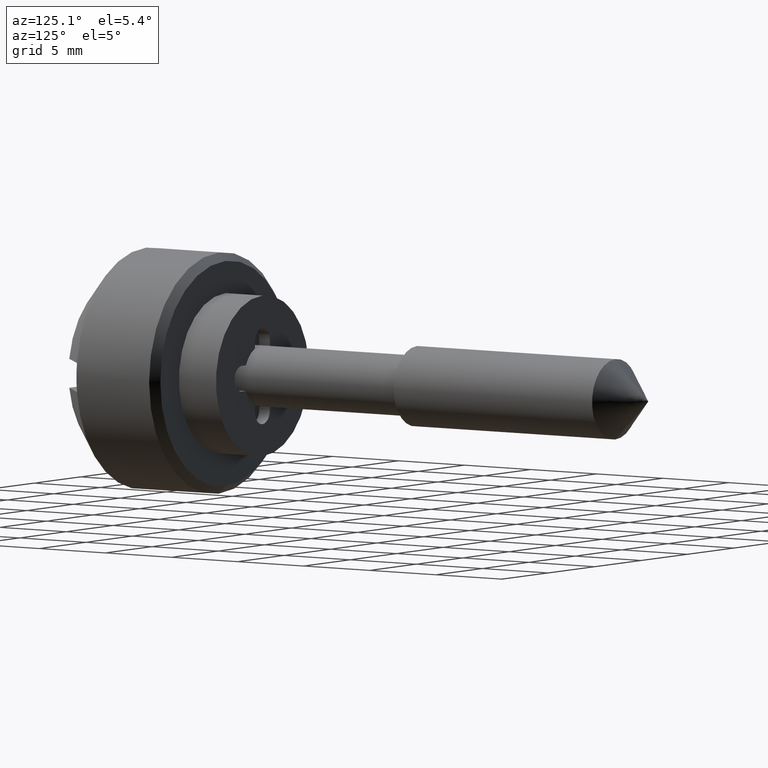
[diagram: clean part render]
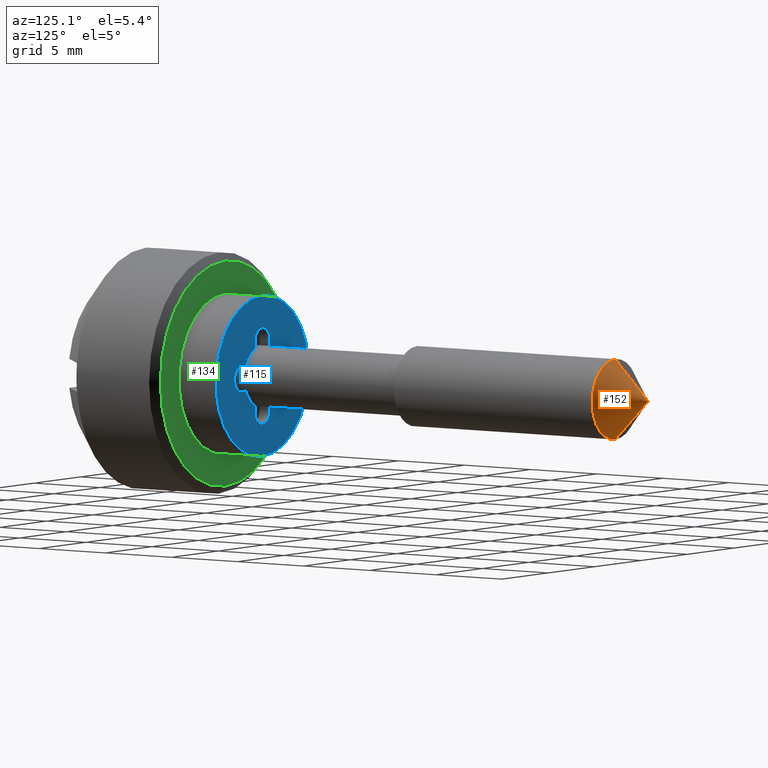
[diagram: same view with three faces highlighted in distinct colors, each labeled with its STEP entity id]
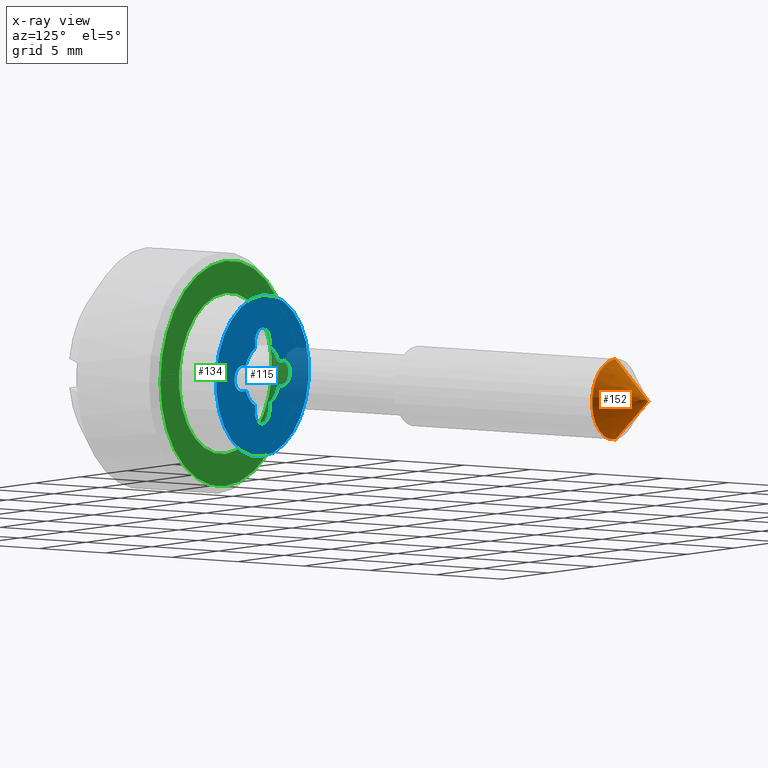
[diagram: x-ray of the same camera — body ghosted, the three highlighted faces saturated]
A machine part, auxiliary view with three faces highlighted in distinct colors.
The next image is the same camera in x-ray (body ghosted, the three faces saturated) — at least one of them is partly hidden behind the body in this view.
Their STEP definitions:

[orange] entity #152 — the highlighted face is a freeform B-spline surface patch.
#152=ADVANCED_FACE('',(#560),#559,.T.);
#559=( BOUNDED_SURFACE() B_SPLINE_SURFACE( 2,1,((#808,#809),(#810,#811),(#812,#813),(#814,#815),(#816,#817)), .UNSPECIFIED.,.F.,.F.,.F.) B_SPLINE_SURFACE_WITH_KNOTS((3,2,3),(2,2),(0.00000000000E+00,5.00000000000E-01,1.00000000000E+00),(0.00000000000E+00,1.00000000000E+00), .UNSPECIFIED. ) GEOMETRIC_REPRESENTATION_ITEM() RATIONAL_B_SPLINE_SURFACE(((1.00000000000E+00,1.00000000000E+00),(7.07106781187E-01,7.07106781187E-01),(1.00000000000E+00,1.00000000000E+00),(7.07106781187E-01,7.07106781187E-01),(1.00000000000E+00,1.00000000000E+00))) REPRESENTATION_ITEM('') SURFACE() );
#560=FACE_OUTER_BOUND('',#818,.T.);
#808=CARTESIAN_POINT('',(3.00000000000E+01,0.00000000000E+00,0.00000000000E+00));
#809=CARTESIAN_POINT('',(2.75000000000E+01,-6.12323399574E-16,-2.50000000000E+00));
#810=CARTESIAN_POINT('',(3.00000000000E+01,0.00000000000E+00,0.00000000000E+00));
#811=CARTESIAN_POINT('',(2.75000000000E+01,-2.50000000000E+00,-2.50000000000E+00));
#812=CARTESIAN_POINT('',(3.00000000000E+01,0.00000000000E+00,0.00000000000E+00));
#813=CARTESIAN_POINT('',(2.75000000000E+01,-2.50000000000E+00,4.59242549680E-16));
#814=CARTESIAN_POINT('',(3.00000000000E+01,0.00000000000E+00,0.00000000000E+00));
#815=CARTESIAN_POINT('',(2.75000000000E+01,-2.50000000000E+00,2.50000000000E+00));
#816=CARTESIAN_POINT('',(3.00000000000E+01,0.00000000000E+00,0.00000000000E+00));
#817=CARTESIAN_POINT('',(2.75000000000E+01,3.06161699787E-16,2.50000000000E+00));
#818=EDGE_LOOP('',(#1020,#1021,#1022));
#1020=ORIENTED_EDGE('',*,*,#1121,.F.);
#1021=ORIENTED_EDGE('',*,*,#1122,.F.);
#1022=ORIENTED_EDGE('',*,*,#1123,.T.);
#1121=EDGE_CURVE('',#1737,#1736,#1756,.T.);
#1122=EDGE_CURVE('',#1762,#1737,#1763,.T.);
#1123=EDGE_CURVE('',#1762,#1736,#1769,.T.);
#1736=VERTEX_POINT('',#2147);
#1737=VERTEX_POINT('',#2148);
#1756=CIRCLE('',#2160,2.50000000000E+00);
#1762=VERTEX_POINT('',#2161);
#1763=(BOUNDED_CURVE() B_SPLINE_CURVE(1,(#2162,#2163),.UNSPECIFIED.,.F.,.F.) B_SPLINE_CURVE_WITH_KNOTS((2,2),(0.00000000000E+00,1.00000000000E+00),.UNSPECIFIED.) CURVE() GEOMETRIC_REPRESENTATION_ITEM() RATIONAL_B_SPLINE_CURVE((1.00000000000E+00,1.00000000000E+00)) REPRESENTATION_ITEM('') );
#1769=(BOUNDED_CURVE() B_SPLINE_CURVE(1,(#2164,#2165),.UNSPECIFIED.,.F.,.F.) B_SPLINE_CURVE_WITH_KNOTS((2,2),(0.00000000000E+00,1.00000000000E+00),.UNSPECIFIED.) CURVE() GEOMETRIC_REPRESENTATION_ITEM() RATIONAL_B_SPLINE_CURVE((7.50000000000E-01,7.50000000000E-01)) REPRESENTATION_ITEM('') );
#2147=CARTESIAN_POINT('',(2.75000000000E+01,0.00000000000E+00,2.50000000000E+00));
#2148=CARTESIAN_POINT('',(2.75000000000E+01,1.48029736617E-16,-2.50000000000E+00));
#2157=CARTESIAN_POINT('',(2.75000000000E+01,0.00000000000E+00,0.00000000000E+00));
#2158=DIRECTION('',(-1.00000000000E+00,0.00000000000E+00,0.00000000000E+00));
#2159=DIRECTION('',(0.00000000000E+00,-1.22460635382E-16,1.00000000000E+00));
#2160=AXIS2_PLACEMENT_3D('',#2157,#2158,#2159);
#2161=CARTESIAN_POINT('',(3.00000000000E+01,0.00000000000E+00,6.73533494602E-16));
#2162=CARTESIAN_POINT('',(3.00000000000E+01,0.00000000000E+00,0.00000000000E+00));
#2163=CARTESIAN_POINT('',(2.75000000000E+01,-6.12303176911E-16,-2.50000000000E+00));
#2164=CARTESIAN_POINT('',(3.00000000000E+01,0.00000000000E+00,0.00000000000E+00));
#2165=CARTESIAN_POINT('',(2.75000000000E+01,7.40148683083E-16,2.50000000000E+00));

[blue] entity #115 — the highlighted planar face has unit normal (0, 1, 0).
#115=ADVANCED_FACE('',(#185,#186),#184,.T.);
#184=PLANE('',#597);
#185=FACE_OUTER_BOUND('',#598,.T.);
#186=FACE_BOUND('',#599,.T.);
#594=CARTESIAN_POINT('',(-1.03923048454E+01,8.00000000000E-01,6.50000000000E+00));
#595=DIRECTION('',(-0.00000000000E+00,1.00000000000E+00,0.00000000000E+00));
#596=DIRECTION('',(1.00000000000E+00,0.00000000000E+00,0.00000000000E+00));
#597=AXIS2_PLACEMENT_3D('',#594,#595,#596);
#598=EDGE_LOOP('',(#842,#843));
#599=EDGE_LOOP('',(#844,#845,#846,#847,#848,#849,#850,#851,#852,#853,#854,#855,#856,#857,#858,#859));
#842=ORIENTED_EDGE('',*,*,#1036,.F.);
#843=ORIENTED_EDGE('',*,*,#1037,.F.);
#844=ORIENTED_EDGE('',*,*,#1038,.T.);
#845=ORIENTED_EDGE('',*,*,#1039,.T.);
#846=ORIENTED_EDGE('',*,*,#1040,.T.);
#847=ORIENTED_EDGE('',*,*,#1041,.T.);
#848=ORIENTED_EDGE('',*,*,#1042,.T.);
#849=ORIENTED_EDGE('',*,*,#1043,.T.);
#850=ORIENTED_EDGE('',*,*,#1044,.T.);
#851=ORIENTED_EDGE('',*,*,#1045,.T.);
#852=ORIENTED_EDGE('',*,*,#1046,.T.);
#853=ORIENTED_EDGE('',*,*,#1047,.T.);
#854=ORIENTED_EDGE('',*,*,#1048,.T.);
#855=ORIENTED_EDGE('',*,*,#1049,.T.);
#856=ORIENTED_EDGE('',*,*,#1034,.T.);
#857=ORIENTED_EDGE('',*,*,#1028,.T.);
#858=ORIENTED_EDGE('',*,*,#1032,.T.);
#859=ORIENTED_EDGE('',*,*,#1050,.T.);
#1028=EDGE_CURVE('',#1139,#1132,#1140,.T.);
#1032=EDGE_CURVE('',#1132,#1159,#1166,.T.);
#1034=EDGE_CURVE('',#1179,#1139,#1180,.T.);
#1036=EDGE_CURVE('',#1192,#1193,#1194,.T.);
#1037=EDGE_CURVE('',#1193,#1192,#1200,.T.);
#1038=EDGE_CURVE('',#1206,#1207,#1208,.T.);
#1039=EDGE_CURVE('',#1207,#1214,#1215,.T.);
#1040=EDGE_CURVE('',#1214,#1221,#1222,.T.);
#1041=EDGE_CURVE('',#1221,#1228,#1229,.T.);
#1042=EDGE_CURVE('',#1228,#1235,#1236,.T.);
#1043=EDGE_CURVE('',#1235,#1242,#1243,.T.);
#1044=EDGE_CURVE('',#1242,#1249,#1250,.T.);
#1045=EDGE_CURVE('',#1249,#1256,#1257,.T.);
#1046=EDGE_CURVE('',#1256,#1263,#1264,.T.);
#1047=EDGE_CURVE('',#1263,#1270,#1271,.T.);
#1048=EDGE_CURVE('',#1270,#1277,#1278,.T.);
#1049=EDGE_CURVE('',#1277,#1179,#1284,.T.);
#1050=EDGE_CURVE('',#1159,#1206,#1290,.T.);
#1132=VERTEX_POINT('',#1780);
#1139=VERTEX_POINT('',#1784);
#1140=LINE('',#1785,#1786);
#1159=VERTEX_POINT('',#1796);
#1166=CIRCLE('',#1803,1.95000000000E+00);
#1179=VERTEX_POINT('',#1809);
#1180=CIRCLE('',#1813,8.00000000000E-01);
#1192=VERTEX_POINT('',#1817);
#1193=VERTEX_POINT('',#1818);
#1194=CIRCLE('',#1822,5.00000000000E+00);
#1200=CIRCLE('',#1826,5.00000000000E+00);
#1206=VERTEX_POINT('',#1827);
#1207=VERTEX_POINT('',#1828);
#1208=CIRCLE('',#1832,8.00000000000E-01);
#1214=VERTEX_POINT('',#1833);
#1215=LINE('',#1834,#1835);
#1221=VERTEX_POINT('',#1837);
#1222=CIRCLE('',#1841,1.95000000000E+00);
#1228=VERTEX_POINT('',#1842);
#1229=LINE('',#1843,#1844);
#1235=VERTEX_POINT('',#1846);
#1236=CIRCLE('',#1850,8.00000000000E-01);
#1242=VERTEX_POINT('',#1851);
#1243=LINE('',#1852,#1853);
#1249=VERTEX_POINT('',#1855);
#1250=CIRCLE('',#1859,1.95000000000E+00);
#1256=VERTEX_POINT('',#1860);
#1257=LINE('',#1861,#1862);
#1263=VERTEX_POINT('',#1864);
#1264=CIRCLE('',#1868,8.00000000000E-01);
#1270=VERTEX_POINT('',#1869);
#1271=LINE('',#1870,#1871);
#1277=VERTEX_POINT('',#1873);
#1278=CIRCLE('',#1877,1.95000000000E+00);
#1284=LINE('',#1878,#1879);
#1290=LINE('',#1881,#1882);
#1780=CARTESIAN_POINT('',(8.00000000000E-01,8.00000000000E-01,-1.77834192438E+00));
#1784=CARTESIAN_POINT('',(8.00000000000E-01,8.00000000000E-01,-2.19999986037E+00));
#1785=CARTESIAN_POINT('',(8.00000000000E-01,8.00000000000E-01,-2.19999986037E+00));
#1786=VECTOR('',#1787,4.21657935996E-01);
#1787=DIRECTION('',(0.00000000000E+00,0.00000000000E+00,1.00000000000E+00));
#1796=CARTESIAN_POINT('',(1.77834192438E+00,8.00000000000E-01,-8.00000000000E-01));
#1800=CARTESIAN_POINT('',(0.00000000000E+00,8.00000000000E-01,0.00000000000E+00));
#1801=DIRECTION('',(0.00000000000E+00,-1.00000000000E+00,0.00000000000E+00));
#1802=DIRECTION('',(-0.00000000000E+00,-0.00000000000E+00,-1.00000000000E+00));
#1803=AXIS2_PLACEMENT_3D('',#1800,#1801,#1802);
#1809=CARTESIAN_POINT('',(-8.00000000000E-01,8.00000000000E-01,-2.20000000000E+00));
#1810=CARTESIAN_POINT('',(0.00000000000E+00,8.00000000000E-01,-2.20000000000E+00));
#1811=DIRECTION('',(0.00000000000E+00,-1.00000000000E+00,0.00000000000E+00));
#1812=DIRECTION('',(1.00000000000E+00,0.00000000000E+00,1.74532918968E-07));
#1813=AXIS2_PLACEMENT_3D('',#1810,#1811,#1812);
#1817=CARTESIAN_POINT('',(5.92118946467E-16,8.00000000000E-01,-5.00000000000E+00));
#1818=CARTESIAN_POINT('',(0.00000000000E+00,8.00000000000E-01,5.00000000000E+00));
#1819=CARTESIAN_POINT('',(0.00000000000E+00,8.00000000000E-01,0.00000000000E+00));
#1820=DIRECTION('',(-0.00000000000E+00,-1.00000000000E+00,0.00000000000E+00));
#1821=DIRECTION('',(-1.22460635382E-16,0.00000000000E+00,1.00000000000E+00));
#1822=AXIS2_PLACEMENT_3D('',#1819,#1820,#1821);
#1823=CARTESIAN_POINT('',(0.00000000000E+00,8.00000000000E-01,0.00000000000E+00));
#1824=DIRECTION('',(-0.00000000000E+00,-1.00000000000E+00,0.00000000000E+00));
#1825=DIRECTION('',(-1.22460635382E-16,0.00000000000E+00,1.00000000000E+00));
#1826=AXIS2_PLACEMENT_3D('',#1823,#1824,#1825);
#1827=CARTESIAN_POINT('',(2.20000000000E+00,8.00000000000E-01,-8.00000000000E-01));
#1828=CARTESIAN_POINT('',(2.20000000000E+00,8.00000000000E-01,8.00000000000E-01));
#1829=CARTESIAN_POINT('',(2.20000000000E+00,8.00000000000E-01,0.00000000000E+00));
#1830=DIRECTION('',(0.00000000000E+00,-1.00000000000E+00,0.00000000000E+00));
#1831=DIRECTION('',(-0.00000000000E+00,-0.00000000000E+00,-1.00000000000E+00));
#1832=AXIS2_PLACEMENT_3D('',#1829,#1830,#1831);
#1833=CARTESIAN_POINT('',(1.77834192438E+00,8.00000000000E-01,8.00000000000E-01));
#1834=CARTESIAN_POINT('',(2.20000000000E+00,8.00000000000E-01,8.00000000000E-01));
#1835=VECTOR('',#1836,4.21658075622E-01);
#1836=DIRECTION('',(-1.00000000000E+00,0.00000000000E+00,0.00000000000E+00));
#1837=CARTESIAN_POINT('',(8.00000000000E-01,8.00000000000E-01,1.77834192438E+00));
#1838=CARTESIAN_POINT('',(0.00000000000E+00,8.00000000000E-01,0.00000000000E+00));
#1839=DIRECTION('',(0.00000000000E+00,-1.00000000000E+00,0.00000000000E+00));
#1840=DIRECTION('',(-0.00000000000E+00,-0.00000000000E+00,-1.00000000000E+00));
#1841=AXIS2_PLACEMENT_3D('',#1838,#1839,#1840);
#1842=CARTESIAN_POINT('',(8.00000000000E-01,8.00000000000E-01,2.20000000000E+00));
#1843=CARTESIAN_POINT('',(8.00000000000E-01,8.00000000000E-01,1.77834192438E+00));
#1844=VECTOR('',#1845,4.21658075622E-01);
#1845=DIRECTION('',(0.00000000000E+00,0.00000000000E+00,1.00000000000E+00));
#1846=CARTESIAN_POINT('',(-8.00000000000E-01,8.00000000000E-01,2.20000000000E+00));
#1847=CARTESIAN_POINT('',(0.00000000000E+00,8.00000000000E-01,2.20000000000E+00));
#1848=DIRECTION('',(0.00000000000E+00,-1.00000000000E+00,0.00000000000E+00));
#1849=DIRECTION('',(-0.00000000000E+00,-0.00000000000E+00,-1.00000000000E+00));
#1850=AXIS2_PLACEMENT_3D('',#1847,#1848,#1849);
#1851=CARTESIAN_POINT('',(-8.00000000000E-01,8.00000000000E-01,1.77834192438E+00));
#1852=CARTESIAN_POINT('',(-8.00000000000E-01,8.00000000000E-01,2.20000000000E+00));
#1853=VECTOR('',#1854,4.21658075622E-01);
#1854=DIRECTION('',(0.00000000000E+00,0.00000000000E+00,-1.00000000000E+00));
#1855=CARTESIAN_POINT('',(-1.77834192438E+00,8.00000000000E-01,8.00000000000E-01));
#1856=CARTESIAN_POINT('',(0.00000000000E+00,8.00000000000E-01,0.00000000000E+00));
#1857=DIRECTION('',(0.00000000000E+00,-1.00000000000E+00,0.00000000000E+00));
#1858=DIRECTION('',(-0.00000000000E+00,-0.00000000000E+00,-1.00000000000E+00));
#1859=AXIS2_PLACEMENT_3D('',#1856,#1857,#1858);
#1860=CARTESIAN_POINT('',(-2.20000000000E+00,8.00000000000E-01,8.00000000000E-01));
#1861=CARTESIAN_POINT('',(-1.77834192438E+00,8.00000000000E-01,8.00000000000E-01));
#1862=VECTOR('',#1863,4.21658075622E-01);
#1863=DIRECTION('',(-1.00000000000E+00,0.00000000000E+00,0.00000000000E+00));
#1864=CARTESIAN_POINT('',(-2.20000000000E+00,8.00000000000E-01,-8.00000000000E-01));
#1865=CARTESIAN_POINT('',(-2.20000000000E+00,8.00000000000E-01,0.00000000000E+00));
#1866=DIRECTION('',(0.00000000000E+00,-1.00000000000E+00,0.00000000000E+00));
#1867=DIRECTION('',(-0.00000000000E+00,-0.00000000000E+00,-1.00000000000E+00));
#1868=AXIS2_PLACEMENT_3D('',#1865,#1866,#1867);
#1869=CARTESIAN_POINT('',(-1.77834192438E+00,8.00000000000E-01,-8.00000000000E-01));
#1870=CARTESIAN_POINT('',(-2.20000000000E+00,8.00000000000E-01,-8.00000000000E-01));
#1871=VECTOR('',#1872,4.21658075622E-01);
#1872=DIRECTION('',(1.00000000000E+00,0.00000000000E+00,0.00000000000E+00));
#1873=CARTESIAN_POINT('',(-8.00000000000E-01,8.00000000000E-01,-1.77834192438E+00));
#1874=CARTESIAN_POINT('',(0.00000000000E+00,8.00000000000E-01,0.00000000000E+00));
#1875=DIRECTION('',(0.00000000000E+00,-1.00000000000E+00,0.00000000000E+00));
#1876=DIRECTION('',(-0.00000000000E+00,-0.00000000000E+00,-1.00000000000E+00));
#1877=AXIS2_PLACEMENT_3D('',#1874,#1875,#1876);
#1878=CARTESIAN_POINT('',(-8.00000000000E-01,8.00000000000E-01,-1.77834192438E+00));
#1879=VECTOR('',#1880,4.21658075622E-01);
#1880=DIRECTION('',(0.00000000000E+00,0.00000000000E+00,-1.00000000000E+00));
#1881=CARTESIAN_POINT('',(1.77834192438E+00,8.00000000000E-01,-8.00000000000E-01));
#1882=VECTOR('',#1883,4.21658075622E-01);
#1883=DIRECTION('',(1.00000000000E+00,0.00000000000E+00,0.00000000000E+00));

[green] entity #134 — the highlighted planar face has unit normal (0, 1, 0).
#134=ADVANCED_FACE('',(#377,#378),#376,.T.);
#376=PLANE('',#694);
#377=FACE_OUTER_BOUND('',#695,.T.);
#378=FACE_BOUND('',#696,.T.);
#691=CARTESIAN_POINT('',(-2.00000000000E+00,-1.45492267836E+01,-9.10000000000E+00));
#692=DIRECTION('',(1.00000000000E+00,0.00000000000E+00,0.00000000000E+00));
#693=DIRECTION('',(0.00000000000E+00,1.00000000000E+00,0.00000000000E+00));
#694=AXIS2_PLACEMENT_3D('',#691,#692,#693);
#695=EDGE_LOOP('',(#942,#943));
#696=EDGE_LOOP('',(#944,#945));
#942=ORIENTED_EDGE('',*,*,#1084,.T.);
#943=ORIENTED_EDGE('',*,*,#1085,.T.);
#944=ORIENTED_EDGE('',*,*,#1086,.T.);
#945=ORIENTED_EDGE('',*,*,#1087,.T.);
#1084=EDGE_CURVE('',#1512,#1513,#1514,.T.);
#1085=EDGE_CURVE('',#1513,#1512,#1520,.T.);
#1086=EDGE_CURVE('',#1526,#1527,#1528,.T.);
#1087=EDGE_CURVE('',#1527,#1526,#1534,.T.);
#1512=VERTEX_POINT('',#2009);
#1513=VERTEX_POINT('',#2010);
#1514=CIRCLE('',#2014,7.00000000000E+00);
#1520=CIRCLE('',#2018,7.00000000000E+00);
#1526=VERTEX_POINT('',#2019);
#1527=VERTEX_POINT('',#2020);
#1528=CIRCLE('',#2024,5.00000000000E+00);
#1534=CIRCLE('',#2028,5.00000000000E+00);
#2009=CARTESIAN_POINT('',(-2.00000000000E+00,0.00000000000E+00,-7.00000000000E+00));
#2010=CARTESIAN_POINT('',(-2.00000000000E+00,2.96059473233E-16,7.00000000000E+00));
#2011=CARTESIAN_POINT('',(-2.00000000000E+00,0.00000000000E+00,0.00000000000E+00));
#2012=DIRECTION('',(1.00000000000E+00,0.00000000000E+00,0.00000000000E+00));
#2013=DIRECTION('',(0.00000000000E+00,-1.22460635382E-16,-1.00000000000E+00));
#2014=AXIS2_PLACEMENT_3D('',#2011,#2012,#2013);
#2015=CARTESIAN_POINT('',(-2.00000000000E+00,0.00000000000E+00,0.00000000000E+00));
#2016=DIRECTION('',(1.00000000000E+00,0.00000000000E+00,0.00000000000E+00));
#2017=DIRECTION('',(0.00000000000E+00,-1.22460635382E-16,-1.00000000000E+00));
#2018=AXIS2_PLACEMENT_3D('',#2015,#2016,#2017);
#2019=CARTESIAN_POINT('',(-2.00000000000E+00,0.00000000000E+00,-5.00000000000E+00));
#2020=CARTESIAN_POINT('',(-2.00000000000E+00,5.92118946467E-16,5.00000000000E+00));
#2021=CARTESIAN_POINT('',(-2.00000000000E+00,0.00000000000E+00,0.00000000000E+00));
#2022=DIRECTION('',(-1.00000000000E+00,0.00000000000E+00,-0.00000000000E+00));
#2023=DIRECTION('',(0.00000000000E+00,-1.22460635382E-16,-1.00000000000E+00));
#2024=AXIS2_PLACEMENT_3D('',#2021,#2022,#2023);
#2025=CARTESIAN_POINT('',(-2.00000000000E+00,0.00000000000E+00,0.00000000000E+00));
#2026=DIRECTION('',(-1.00000000000E+00,0.00000000000E+00,-0.00000000000E+00));
#2027=DIRECTION('',(0.00000000000E+00,-1.22460635382E-16,-1.00000000000E+00));
#2028=AXIS2_PLACEMENT_3D('',#2025,#2026,#2027);